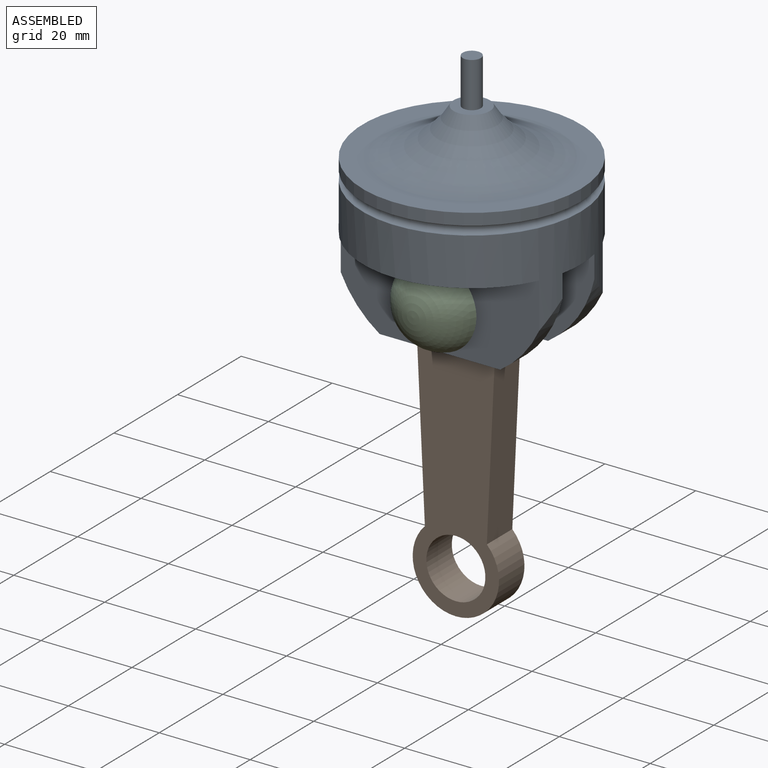
[diagram: assembled view]
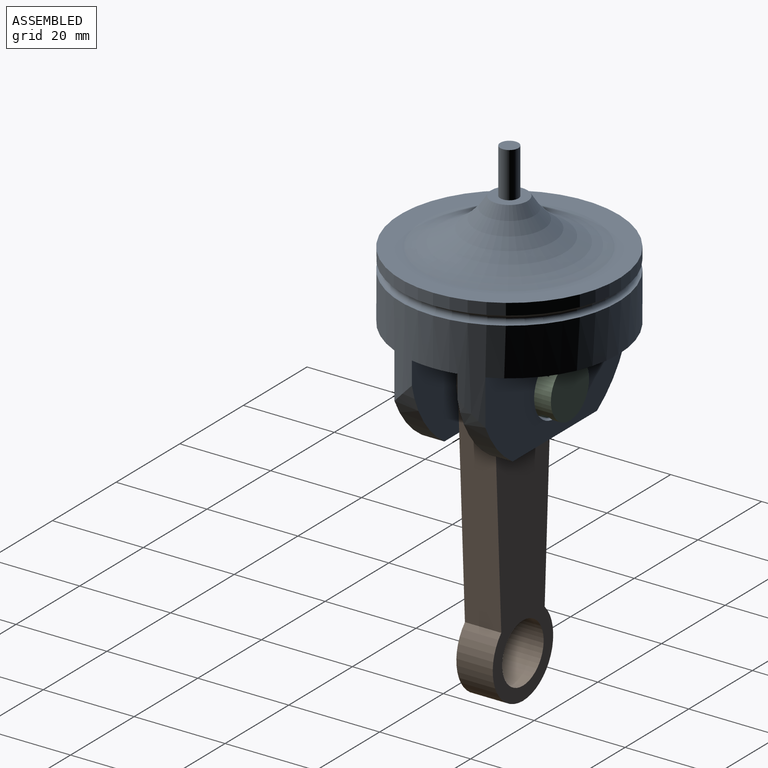
[diagram: assembled view, second angle]
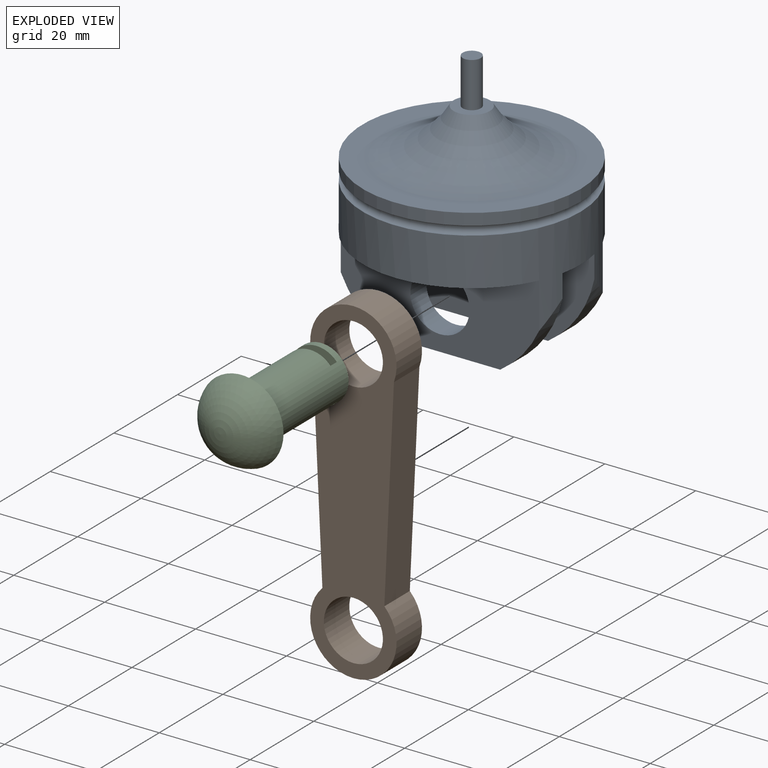
[diagram: exploded view]
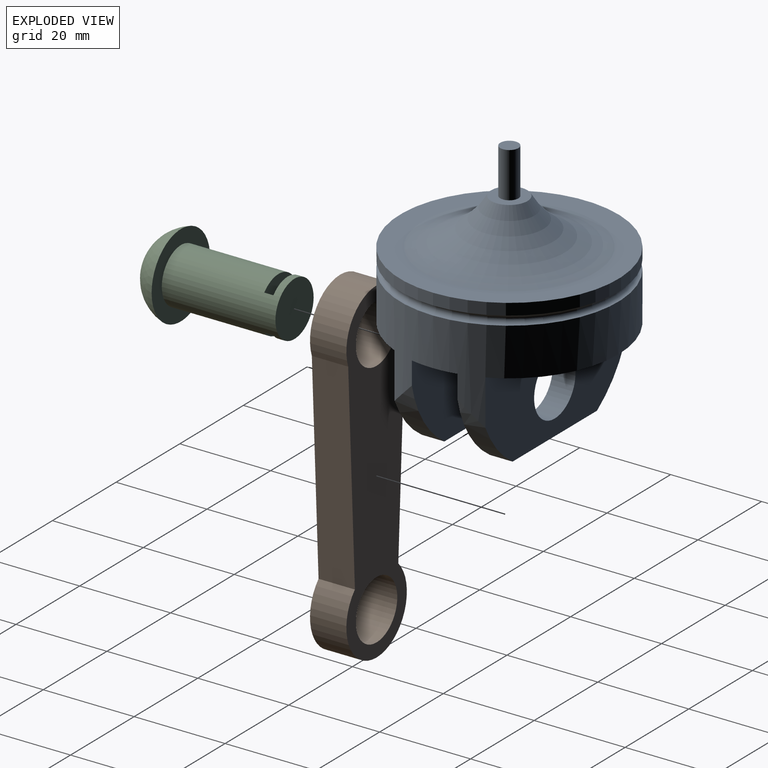
[diagram: exploded view, second angle]
ASSEMBLY  parts=3 mates=2
PART A: 25 faces, bbox 53.5x53.5x55.1 mm
  f0: cylinder r=24mm len=48mm, axis (0,0,-1), area 1737.6mm2, adj f1,f2,f4,f5,f7,f8,f9,f10
  f1: plane 46.95x24.44mm, normal (0,-1,0), area 760.7mm2, adj f0,f3,f7,f8,f12,f13,f16,f17
  f2: plane 43.64x20mm, normal (0,1,0), area 670.6mm2, adj f0,f3,f9,f12,f16,f17
  f3: plane 26.53x5mm, normal (0,0,-1), area 132.7mm2, adj f1,f2,f16,f17
  f4: plane 46.95x24.44mm, normal (0,1,0), area 760.7mm2, adj f0,f6,f7,f8,f11,f13,f14,f15
  f5: plane 43.64x20mm, normal (0,-1,0), area 670.6mm2, adj f0,f6,f10,f11,f14,f15
  f6: plane 26.53x5mm, normal (0,0,-1), area 132.7mm2, adj f4,f5,f14,f15
  f7: plane 13.54x10mm, normal (0,0,-1), area 133.7mm2, adj f0,f1,f4,f13
  f8: plane 13.54x10mm, normal (0,0,-1), area 133.7mm2, adj f0,f1,f4,f13
  f9: plane 43.64x14mm, normal (0,0,-1), area 439.1mm2, adj f0,f2
  f10: plane 43.64x14mm, normal (0,0,-1), area 439.1mm2, adj f0,f5
  f11: cylinder r=6.5mm len=13mm, axis (0,1,0), area 204.2mm2, adj f4,f5
  f12: cylinder r=6.5mm len=13mm, axis (0,1,0), area 204.2mm2, adj f1,f2
  f13: cylinder r=14.53mm len=20.92mm, axis (0,-1,0), area 233.5mm2, adj f1,f4,f7,f8
  f14: cylinder r=24mm len=15mm, axis (0,-1,0), area 80mm2, adj f0,f4,f5,f6
  f15: cylinder r=24mm len=15mm, axis (0,-1,0), area 80mm2, adj f0,f4,f5,f6
  f16: cylinder r=24mm len=15mm, axis (0,-1,0), area 80mm2, adj f0,f1,f2,f3
  f17: cylinder r=24mm len=15mm, axis (0,-1,0), area 80mm2, adj f0,f1,f2,f3
  f18: torus R=24mm, axis (0,0,1), area 461.2mm2, adj f0,f20
  f19: plane 48x48mm, normal (0,0,1), area 675.6mm2, adj f20,f24
  f20: cylinder r=24mm len=48mm, axis (0,0,-1), area 381.7mm2, adj f18,f19
  f21: plane 4x4mm, normal (0,0,1), area 12.6mm2, adj f22
  f22: cylinder r=2mm len=9.99mm, axis (0,0,1), area 125.5mm2, adj f21,f23
  f23: plane 8x8mm, normal (0,0,1), area 37.7mm2, adj f22,f24
  f24: torus R=21.5mm, axis (0,0,1), area 1262.6mm2, adj f19,f23
PART B: 8 faces, bbox 19x8x74 mm
  f0: plane 45.13x8mm, normal (-1,0,-0.05), area 361.4mm2, adj f1,f4,f6,f7
  f1: cylinder r=9.5mm len=19mm, axis (0,1,0), area 355.9mm2, adj f0,f2,f6,f7
  f2: plane 45.13x8mm, normal (1,0,-0.05), area 361.4mm2, adj f1,f4,f6,f7
  f3: cylinder r=6.5mm len=13mm, axis (0,1,0), area 326.7mm2, adj f6,f7
  f4: cylinder r=9.5mm len=19mm, axis (0,1,0), area 291.9mm2, adj f0,f2,f6,f7
  f5: cylinder r=6.5mm len=13mm, axis (0,1,0), area 326.7mm2, adj f6,f7
  f6: plane 74x19mm, normal (0,-1,0), area 903.7mm2, adj f0,f1,f2,f3,f4,f5
  f7: plane 74x19mm, normal (0,1,0), area 903.7mm2, adj f0,f1,f2,f3,f4,f5
PART C: 8 faces, bbox 18.4x18.4x31.9 mm
  f0: cylinder r=6mm len=25mm, axis (0,0,-1), area 902.1mm2, adj f1,f3,f4,f5,f6,f7
  f1: plane 12x12mm, normal (0,0,-1), area 113.1mm2, adj f0
  f2: sphere r=9.58mm, area 414.5mm2, adj f3
  f3: plane 18.39x18.39mm, normal (0,0,-1), area 152.4mm2, adj f0,f2
  f4: plane 8x2mm, normal (1,0,0), area 16mm2, adj f0,f5,f7
  f5: plane 12x8.94mm, normal (0,0,1), area 96.3mm2, adj f0,f4,f6
  f6: plane 8x2mm, normal (-1,0,0), area 16mm2, adj f0,f5,f7
  f7: plane 12x8.94mm, normal (0,0,-1), area 96.3mm2, adj f0,f4,f6
PLACE A t=(-2.3,-7.07,19.42)mm
PLACE B t=(-2.3,-4.07,-8.75)mm
PLACE C rot(axis=(0,-0.71,0.71),180deg) t=(-2.3,6.27,9.42)mm
MATE slider C.f0 <-> A.f11  axis (0,1,0) through (-2.3,-18.73,9.42)mm
MATE revolute B.f3 <-> A.f11  axis (0,-1,0) through (-2.3,-12.07,9.42)mm
